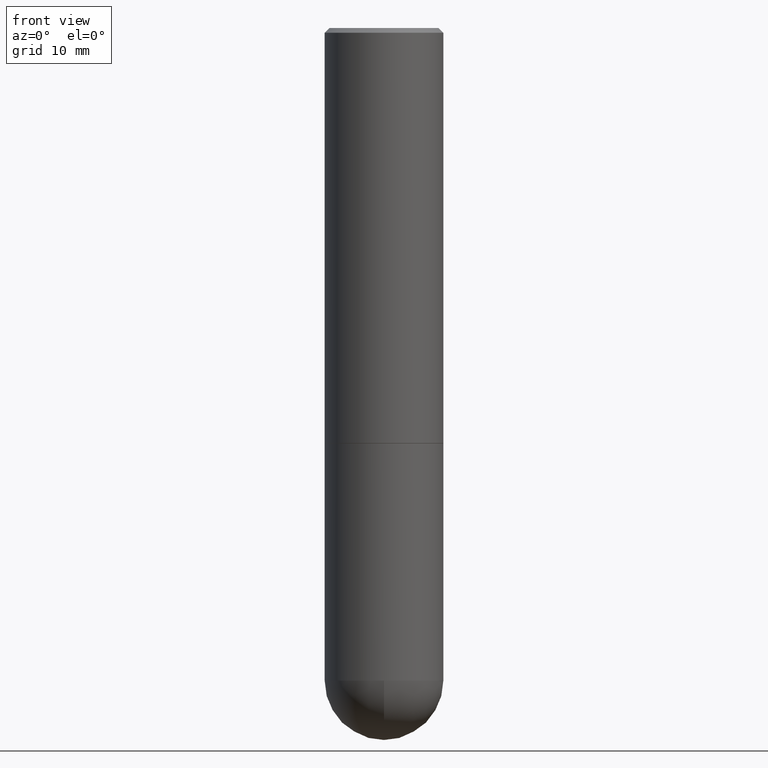
[diagram: clean part render]
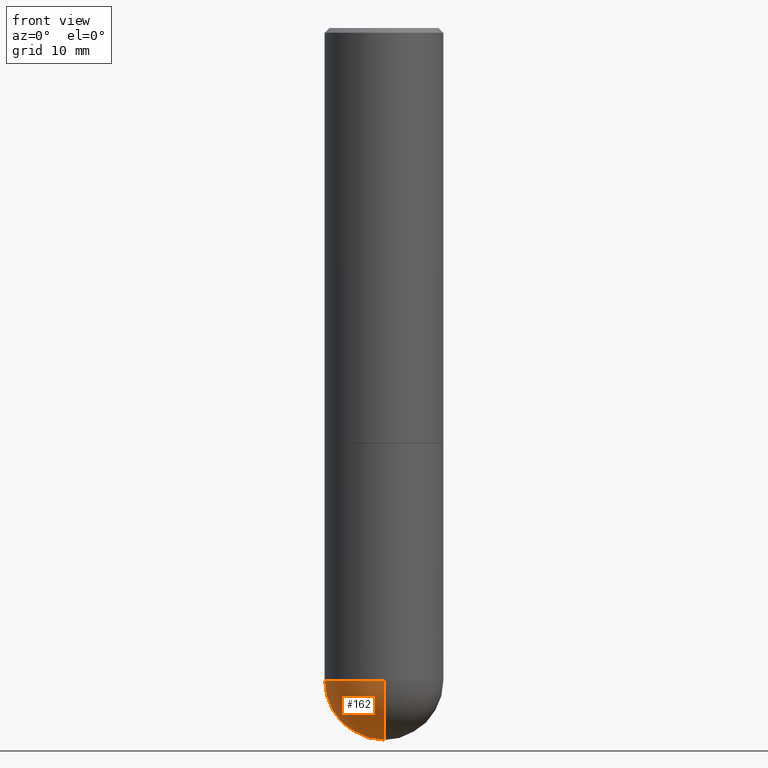
[diagram: same view with one face highlighted and labeled with its STEP entity id]
A machine part, front view. The second image highlights one B-rep face of the part: STEP entity #162.
In plain terms, the highlighted spherical surface has radius 6.35 mm.
Its self-contained STEP definition (entity closure, byte-faithful):
#7 = DIRECTION ( 'NONE',  ( 1.000000000000000000, -6.982962677686262766E-15, 0.000000000000000000 ) ) ;
#12 = CARTESIAN_POINT ( 'NONE',  ( 6.393919439095240515E-29, -1.007575604995870173E-14, -2.750000000000000444 ) ) ;
#14 = EDGE_LOOP ( 'NONE', ( #30, #275, #378, #273 ) ) ;
#21 = CARTESIAN_POINT ( 'NONE',  ( 1.745740669421632745E-15, 0.2499999999999902300, -2.750000000000000888 ) ) ;
#24 = VERTEX_POINT ( 'NONE', #149 ) ;
#30 = ORIENTED_EDGE ( 'NONE', *, *, #341, .F. ) ;
#65 = EDGE_CURVE ( 'NONE', #342, #93, #230, .T. ) ;
#68 = AXIS2_PLACEMENT_3D ( 'NONE', #249, #211, #237 ) ;
#85 = CARTESIAN_POINT ( 'NONE',  ( 6.393919439095240515E-29, -1.007575604995870173E-14, -2.750000000000000444 ) ) ;
#93 = VERTEX_POINT ( 'NONE', #203 ) ;
#111 = DIRECTION ( 'NONE',  ( 1.000000000000000000, -6.982962677686265922E-15, 4.883557194083112340E-29 ) ) ;
#127 = EDGE_CURVE ( 'NONE', #24, #93, #253, .T. ) ;
#133 = AXIS2_PLACEMENT_3D ( 'NONE', #261, #229, #7 ) ;
#141 = DIRECTION ( 'NONE',  ( 6.982962677686265922E-15, 1.000000000000000000, -4.370956789862818783E-15 ) ) ;
#149 = CARTESIAN_POINT ( 'NONE',  ( -0.2500000000000000000, -6.079476172996828773E-15, -2.750000000000000000 ) ) ;
#152 = DIRECTION ( 'NONE',  ( -1.000000000000000000, 7.105427357601001070E-15, -4.926315508542082329E-29 ) ) ;
#160 = SPHERICAL_SURFACE ( 'NONE', #161, 0.2500000000000001110 ) ;
#161 = AXIS2_PLACEMENT_3D ( 'NONE', #12, #234, #141 ) ;
#162 = ADVANCED_FACE ( 'NONE', ( #411 ), #160, .T. ) ;
#201 = CARTESIAN_POINT ( 'NONE',  ( 7.015976219256266741E-29, -1.093331829968014633E-14, -3.000000000000000888 ) ) ;
#203 = CARTESIAN_POINT ( 'NONE',  ( -1.776356839400184989E-15, -0.2500000000000098810, -2.749999999999998668 ) ) ;
#211 = DIRECTION ( 'NONE',  ( -2.445468806185136597E-29, 3.491481338843145583E-15, 1.000000000000000000 ) ) ;
#215 = EDGE_CURVE ( 'NONE', #357, #24, #277, .T. ) ;
#229 = DIRECTION ( 'NONE',  ( -2.445468806185136597E-29, 3.491481338843145583E-15, 1.000000000000000000 ) ) ;
#230 = CIRCLE ( 'NONE', #313, 0.2500000000000001110 ) ;
#234 = DIRECTION ( 'NONE',  ( -1.000000000000000000, 6.982962677686265922E-15, -4.883557194083113462E-29 ) ) ;
#237 = DIRECTION ( 'NONE',  ( 1.000000000000000000, -6.982962677686262766E-15, 0.000000000000000000 ) ) ;
#249 = CARTESIAN_POINT ( 'NONE',  ( 6.725039217009124520E-29, -9.601573681818649859E-15, -2.750000000000000000 ) ) ;
#253 = CIRCLE ( 'NONE', #133, 0.2500000000000000000 ) ;
#260 = CARTESIAN_POINT ( 'NONE',  ( 6.393919439095240515E-29, -1.007575604995870173E-14, -2.750000000000000444 ) ) ;
#261 = CARTESIAN_POINT ( 'NONE',  ( 6.725039217009124520E-29, -9.601573681818649859E-15, -2.750000000000000000 ) ) ;
#269 = AXIS2_PLACEMENT_3D ( 'NONE', #85, #111, #362 ) ;
#273 = ORIENTED_EDGE ( 'NONE', *, *, #215, .F. ) ;
#275 = ORIENTED_EDGE ( 'NONE', *, *, #65, .T. ) ;
#277 = CIRCLE ( 'NONE', #68, 0.2500000000000000000 ) ;
#287 = DIRECTION ( 'NONE',  ( -7.105427357601001859E-15, -1.000000000000000000, 0.000000000000000000 ) ) ;
#313 = AXIS2_PLACEMENT_3D ( 'NONE', #260, #152, #287 ) ;
#316 = CIRCLE ( 'NONE', #269, 0.2500000000000001110 ) ;
#341 = EDGE_CURVE ( 'NONE', #342, #357, #316, .T. ) ;
#342 = VERTEX_POINT ( 'NONE', #201 ) ;
#357 = VERTEX_POINT ( 'NONE', #21 ) ;
#362 = DIRECTION ( 'NONE',  ( 6.982962677686266711E-15, 1.000000000000000000, 0.000000000000000000 ) ) ;
#378 = ORIENTED_EDGE ( 'NONE', *, *, #127, .F. ) ;
#411 = FACE_OUTER_BOUND ( 'NONE', #14, .T. ) ;